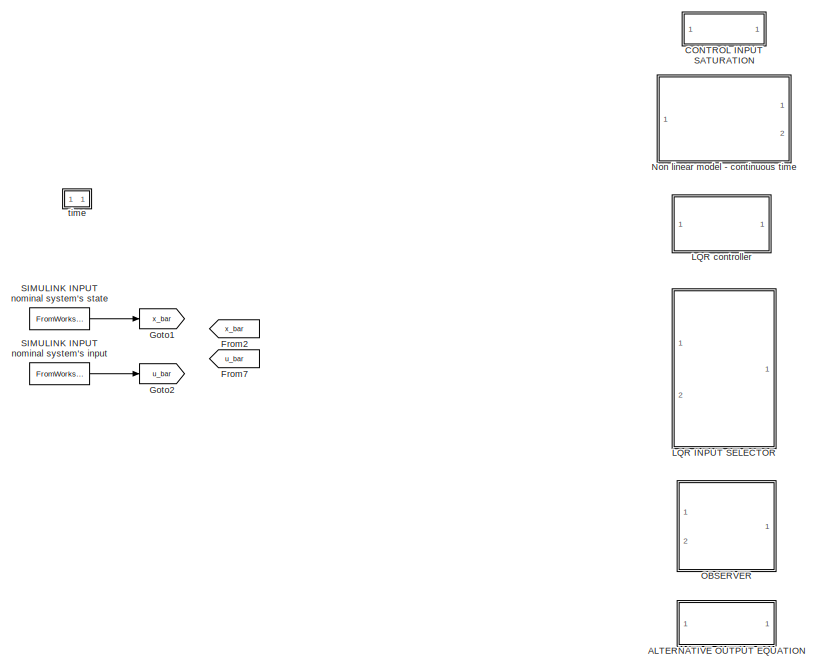
[diagram: root canvas - part 1/2, left side, full height]
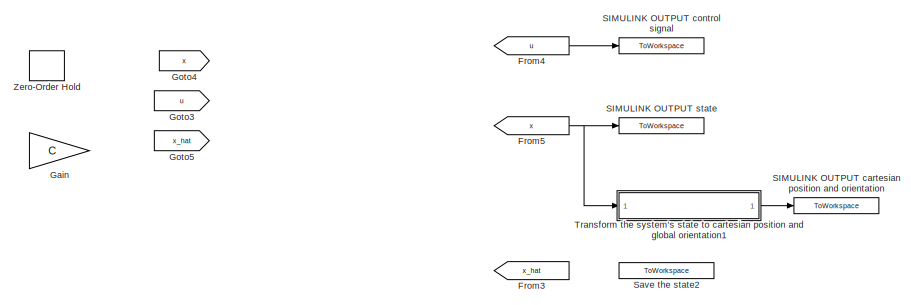
[diagram: root canvas - part 2/2, middle right region]
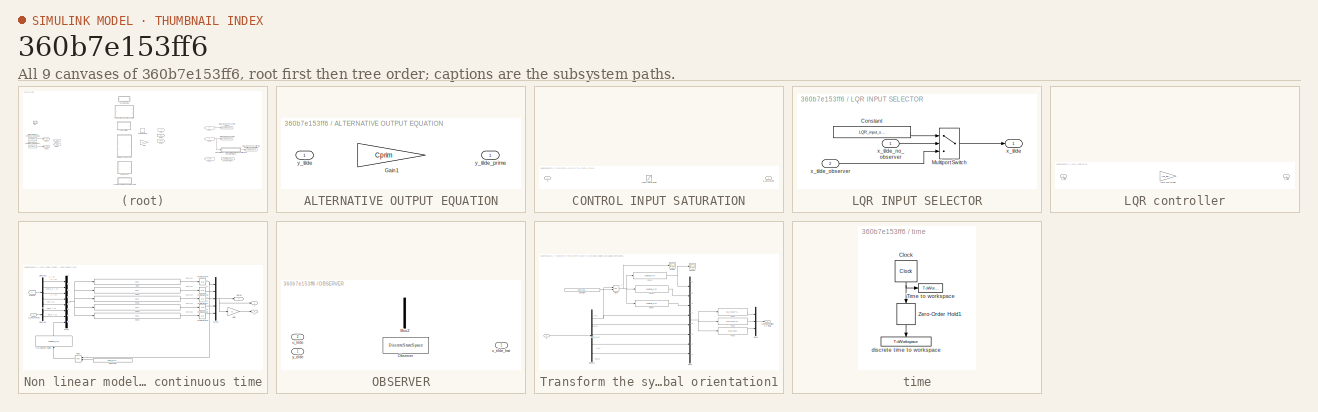
[diagram: thumbnail index - all 9 canvases of the model, root first then tree order]
MODEL slx_360b7e153ff6
KIND model
CONFIG AbsTol = auto
CONFIG EnableMultiTasking = on
CONFIG FixedStep = auto
CONFIG MaxStep = 0.01
CONFIG MinStep = auto
CONFIG RelTol = 1e-3
CONFIG SampleTimeConstraint = Unconstrained
CONFIG Solver = ode45
CONFIG SolverName = ode45
CONFIG StartTime = 0.0
CONFIG StopTime = simulation_time
BLOCK [SubSystem] ALTERNATIVE OUTPUT EQUATION
  Ports = [1, 1]
  RequestExecContextInheritance = off
BLOCK [Gain] ALTERNATIVE OUTPUT EQUATION/Gain1
  Gain = Cprim
  Multiplication = Matrix(K*u)
  OutDataTypeStr = Inherit: Inherit via internal rule
  ParamDataTypeStr = Inherit: Inherit via internal rule
  SaturateOnIntegerOverflow = off
BLOCK [Inport] ALTERNATIVE OUTPUT EQUATION/y_tilde
  IconDisplay = Port number
BLOCK [Outport] ALTERNATIVE OUTPUT EQUATION/y_tilde_prime
  IconDisplay = Port number
BLOCK [SubSystem] CONTROL INPUT SATURATION
  Ports = [1, 1]
  RequestExecContextInheritance = off
BLOCK [Saturate] CONTROL INPUT SATURATION/Input saturation
  InputPortMap = u0
  LowerLimit = [0;-4*pi]
  Ports = [1, 1]
  UpperLimit = [Inf;4*pi]
BLOCK [Inport] CONTROL INPUT SATURATION/u
  IconDisplay = Port number
BLOCK [Outport] CONTROL INPUT SATURATION/u_saturated
  IconDisplay = Port number
BLOCK [From] From2
  GotoTag = x_bar
BLOCK [From] From3
  GotoTag = x_hat
BLOCK [From] From4
  GotoTag = u
BLOCK [From] From5
  GotoTag = x
BLOCK [From] From7
  GotoTag = u_bar
BLOCK [Gain] Gain
  Gain = C
  Multiplication = Matrix(K*u)
  OutDataTypeStr = Inherit: Inherit via internal rule
  ParamDataTypeStr = Inherit: Inherit via internal rule
  SaturateOnIntegerOverflow = off
BLOCK [Goto] Goto1
  GotoTag = x_bar
BLOCK [Goto] Goto2
  GotoTag = u_bar
BLOCK [Goto] Goto3
  GotoTag = u
BLOCK [Goto] Goto4
  GotoTag = x
BLOCK [Goto] Goto5
  GotoTag = x_hat
BLOCK [SubSystem] LQR INPUT SELECTOR
  Ports = [2, 1]
  RequestExecContextInheritance = off
BLOCK [Constant] LQR INPUT SELECTOR/Constant
  Value = LQR_input_signal_ID
BLOCK [MultiPortSwitch] LQR INPUT SELECTOR/Multiport Switch
  InputSameDT = off
  Inputs = 2
  Ports = [3, 1]
  SaturateOnIntegerOverflow = off
BLOCK [Outport] LQR INPUT SELECTOR/x_tilde
  IconDisplay = Port number
BLOCK [Inport] LQR INPUT SELECTOR/x_tilde_no_observer 
  IconDisplay = Port number
  PortDimensions = 5
BLOCK [Inport] LQR INPUT SELECTOR/x_tilde_observer
  IconDisplay = Port number
  Port = 2
  PortDimensions = 5
BLOCK [SubSystem] LQR controller
  Ports = [1, 1]
  RequestExecContextInheritance = off
BLOCK [Gain] LQR controller/LQR control gain
  Gain = -lqr_gain
  Multiplication = Matrix(K*u)
  OutDataTypeStr = Inherit: Inherit via internal rule
  ParamDataTypeStr = Inherit: Inherit via internal rule
  SaturateOnIntegerOverflow = off
BLOCK [Outport] LQR controller/u_tilde
  IconDisplay = Port number
BLOCK [Inport] LQR controller/x_tilde
  IconDisplay = Port number
  PortDimensions = 5
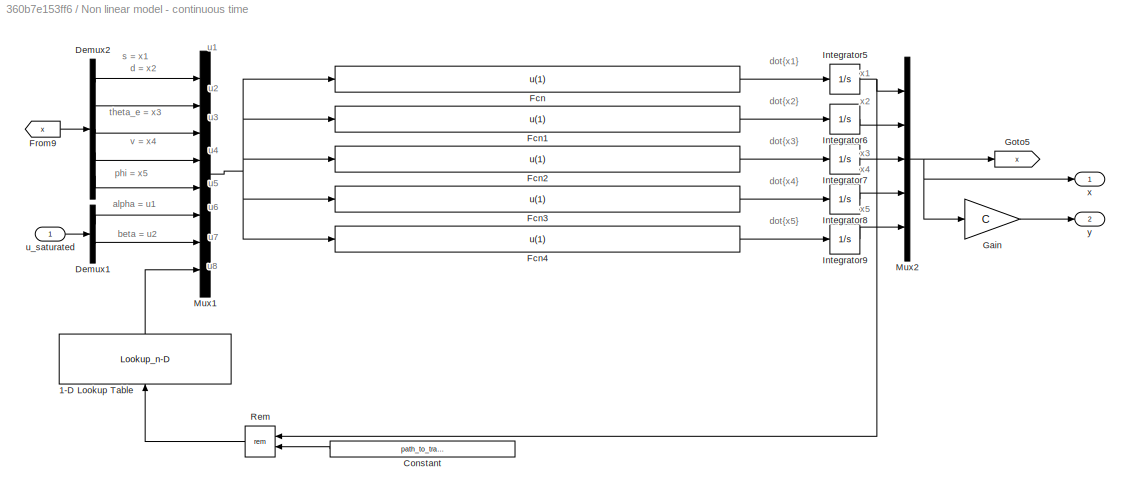
BLOCK [SubSystem] Non linear model - continuous time
  Ports = [1, 2]
  RequestExecContextInheritance = off
BLOCK [Lookup_n-D] Non linear model - continuous time/1-D Lookup Table
  BreakpointsForDimension1 = path_to_track.s_coordinate
  InternalRulePriority = Speed
  NumberOfTableDimensions = 1
  Ports = [1, 1]
  RndMeth = Simplest
  Table = path_to_track.curvature
BLOCK [Constant] Non linear model - continuous time/Constant
  Value = path_to_track.s_coordinate(end)
BLOCK [Demux] Non linear model - continuous time/Demux1
  DisplayOption = bar
  Outputs = 2
  Ports = [1, 2]
BLOCK [Demux] Non linear model - continuous time/Demux2
  DisplayOption = bar
  Outputs = 5
  Ports = [1, 5]
BLOCK [Fcn] Non linear model - continuous time/Fcn
  Expr = u(1)
BLOCK [Fcn] Non linear model - continuous time/Fcn1
  Expr = u(1)
BLOCK [Fcn] Non linear model - continuous time/Fcn2
  Expr = u(1)
BLOCK [Fcn] Non linear model - continuous time/Fcn3
  Expr = u(1)
BLOCK [Fcn] Non linear model - continuous time/Fcn4
  Expr = u(1)
BLOCK [From] Non linear model - continuous time/From9
  GotoTag = x
BLOCK [Gain] Non linear model - continuous time/Gain
  Gain = C
  Multiplication = Matrix(K*u)
  OutDataTypeStr = Inherit: Inherit via internal rule
  ParamDataTypeStr = Inherit: Inherit via internal rule
  SaturateOnIntegerOverflow = off
BLOCK [Goto] Non linear model - continuous time/Goto5
  GotoTag = x
BLOCK [Integrator] Non linear model - continuous time/Integrator5
  InitialCondition = x0(1)
  Ports = [1, 1]
BLOCK [Integrator] Non linear model - continuous time/Integrator6
  InitialCondition = x0(2)
  Ports = [1, 1]
BLOCK [Integrator] Non linear model - continuous time/Integrator7
  InitialCondition = x0(3)
  Ports = [1, 1]
BLOCK [Integrator] Non linear model - continuous time/Integrator8
  InitialCondition = x0(4)
  Ports = [1, 1]
BLOCK [Integrator] Non linear model - continuous time/Integrator9
  InitialCondition = x0(5)
  Ports = [1, 1]
BLOCK [Mux] Non linear model - continuous time/Mux1
  DisplayOption = bar
  Inputs = 8
  Ports = [8, 1]
BLOCK [Mux] Non linear model - continuous time/Mux2
  DisplayOption = bar
  Inputs = 5
  Ports = [5, 1]
BLOCK [Math] Non linear model - continuous time/Rem
  Operator = rem
  Ports = [2, 1]
BLOCK [Inport] Non linear model - continuous time/u_saturated
  IconDisplay = Port number
BLOCK [Outport] Non linear model - continuous time/x
  IconDisplay = Port number
BLOCK [Outport] Non linear model - continuous time/y
  IconDisplay = Port number
  Port = 2
BLOCK [SubSystem] OBSERVER
  Ports = [2, 1]
  RequestExecContextInheritance = off
BLOCK [Mux] OBSERVER/Mux2
  DisplayOption = bar
  Inputs = 2
  Ports = [2, 1]
BLOCK [DiscreteStateSpace] OBSERVER/Observer
  A = AObs
  B = BObs
  C = CObs
  D = DObs
  InitialCondition = x0Obs
  SampleTime = sampling_time
BLOCK [Inport] OBSERVER/u_tilde
  IconDisplay = Port number
  Port = 2
BLOCK [Outport] OBSERVER/x_tilde_hat
  IconDisplay = Port number
BLOCK [Inport] OBSERVER/y_tilde
  IconDisplay = Port number
BLOCK [FromWorkspace] SIMULINK INPUT nominal system's input
  OutputAfterFinalValue = Holding final value
  SampleTime = sampling_time
  VariableName = u_bar
  ZeroCross = on
BLOCK [FromWorkspace] SIMULINK INPUT nominal system's state
  OutputAfterFinalValue = Holding final value
  SampleTime = sampling_time
  VariableName = x_bar
  ZeroCross = on
BLOCK [ToWorkspace] SIMULINK OUTPUT cartesian position and orientation
  MaxDataPoints = inf
  Ports = [1]
  SampleTime = -1
  VariableName = x_y_theta
BLOCK [ToWorkspace] SIMULINK OUTPUT control signal
  MaxDataPoints = inf
  Ports = [1]
  SampleTime = -1
  VariableName = u
BLOCK [ToWorkspace] SIMULINK OUTPUT state
  MaxDataPoints = inf
  Ports = [1]
  SampleTime = -1
  VariableName = x
BLOCK [ToWorkspace] Save the state2
  MaxDataPoints = inf
  Ports = [1]
  SampleTime = -1
  VariableName = x_hat1
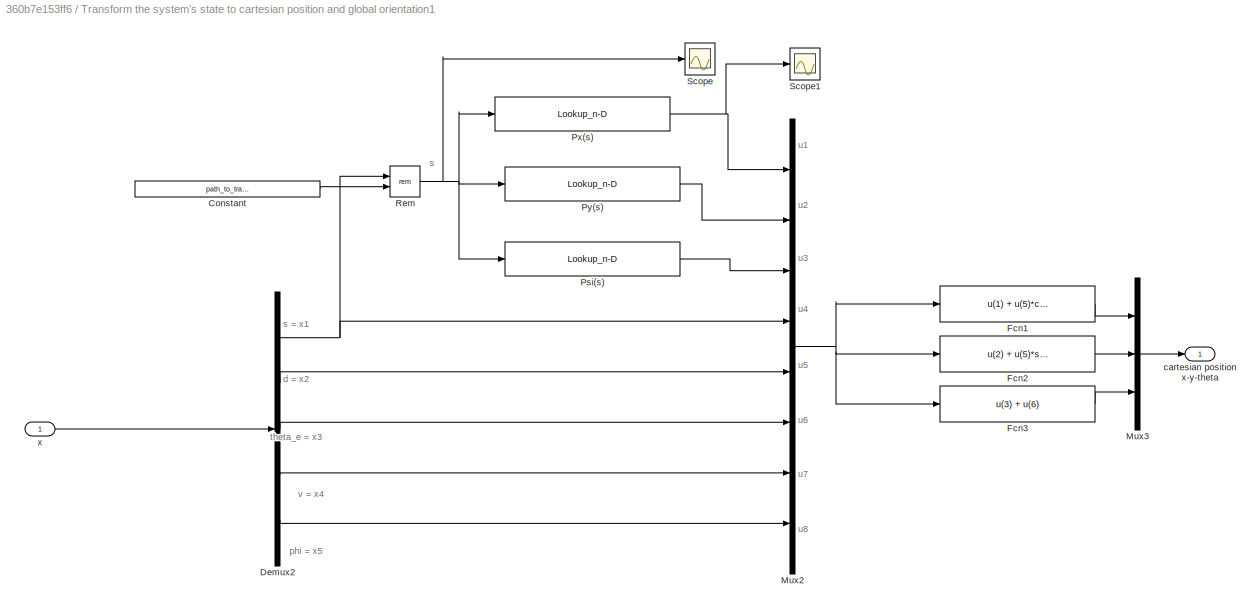
BLOCK [SubSystem] Transform the system's state to cartesian position and global orientation1
  Ports = [1, 1]
  RequestExecContextInheritance = off
BLOCK [Constant] Transform the system's state to cartesian position and global orientation1/Constant
  Value = path_to_track.s_coordinate(end)
BLOCK [Demux] Transform the system's state to cartesian position and global orientation1/Demux2
  DisplayOption = bar
  Outputs = 5
  Ports = [1, 5]
BLOCK [Fcn] Transform the system's state to cartesian position and global orientation1/Fcn1
  Expr = u(1) + u(5)*cos(u(3) + pi/2)
BLOCK [Fcn] Transform the system's state to cartesian position and global orientation1/Fcn2
  Expr = u(2) + u(5)*sin(u(3) + pi/2)
BLOCK [Fcn] Transform the system's state to cartesian position and global orientation1/Fcn3
  Expr = u(3) + u(6)
BLOCK [Mux] Transform the system's state to cartesian position and global orientation1/Mux2
  DisplayOption = bar
  Inputs = 8
  Ports = [8, 1]
BLOCK [Mux] Transform the system's state to cartesian position and global orientation1/Mux3
  DisplayOption = bar
  Inputs = 3
  Ports = [3, 1]
BLOCK [Lookup_n-D] Transform the system's state to cartesian position and global orientation1/Psi(s)
  BreakpointsForDimension1 = path_to_track.s_coordinate
  InternalRulePriority = Speed
  NumberOfTableDimensions = 1
  Ports = [1, 1]
  RndMeth = Simplest
  Table = path_to_track.orientation
BLOCK [Lookup_n-D] Transform the system's state to cartesian position and global orientation1/Px(s)
  BreakpointsForDimension1 = path_to_track.s_coordinate
  InternalRulePriority = Speed
  NumberOfTableDimensions = 1
  Ports = [1, 1]
  RndMeth = Simplest
  Table = path_to_track.coordinates(:,1)
BLOCK [Lookup_n-D] Transform the system's state to cartesian position and global orientation1/Py(s)
  BreakpointsForDimension1 = path_to_track.s_coordinate
  InternalRulePriority = Speed
  NumberOfTableDimensions = 1
  Ports = [1, 1]
  RndMeth = Simplest
  Table = path_to_track.coordinates(:,2)
BLOCK [Math] Transform the system's state to cartesian position and global orientation1/Rem
  Operator = rem
  Ports = [2, 1]
BLOCK [Scope] Transform the system's state to cartesian position and global orientation1/Scope
  Floating = off
  NumInputPorts = 1
  Ports = [1]
  ScopeSpecificationString = Simulink.scopes.TimeScopeBlockCfg('CurrentConfiguration', extmgr.ConfigurationSet(extmgr.Configuration('Core','General UI',true),extmgr.Configuration('Core','Source UI',true),extmgr.Configuration('Sources','WiredSimulink',true),extmgr.Configuration('Visuals','Time Domain',true,'SerializedDisplays',{struct('MinYLimReal','-23.93468','MaxYLimReal','214.65941','YLabelReal','','MinYLimMag','0.00000','M...<+1360ch>
BLOCK [Scope] Transform the system's state to cartesian position and global orientation1/Scope1
  Floating = off
  NumInputPorts = 1
  Ports = [1]
  ScopeSpecificationString = Simulink.scopes.TimeScopeBlockCfg('CurrentConfiguration', extmgr.ConfigurationSet(extmgr.Configuration('Core','General UI',true),extmgr.Configuration('Core','Source UI',true),extmgr.Configuration('Sources','WiredSimulink',true,'DataLoggingVariableName','ScopeData1'),extmgr.Configuration('Visuals','Time Domain',true,'SerializedDisplays',{struct('MinYLimReal','9999999998.22974','MaxYLimReal','999999...<+1459ch>
BLOCK [Outport] Transform the system's state to cartesian position and global orientation1/cartesian position x-y-theta
  IconDisplay = Port number
BLOCK [Inport] Transform the system's state to cartesian position and global orientation1/x
  IconDisplay = Port number
BLOCK [ZeroOrderHold] Zero-Order Hold
  SampleTime = sampling_time
BLOCK [SubSystem] time
  Ports = []
  RequestExecContextInheritance = off
BLOCK [Clock] time/Clock
  DisplayTime = on
BLOCK [ToWorkspace] time/Time to workspace
  MaxDataPoints = inf
  Ports = [1]
  SampleTime = -1
  VariableName = time
BLOCK [ZeroOrderHold] time/Zero-Order Hold1
  SampleTime = sampling_time
BLOCK [ToWorkspace] time/discrete time to workspace
  MaxDataPoints = inf
  Ports = [1]
  SampleTime = -1
  VariableName = discrete_time
ANNOTATION Non linear model - continuous time: alpha = u1
ANNOTATION Non linear model - continuous time: beta = u2
ANNOTATION Non linear model - continuous time: d = x2
ANNOTATION Non linear model - continuous time: dot{x1}
ANNOTATION Non linear model - continuous time: dot{x2}
ANNOTATION Non linear model - continuous time: dot{x3}
ANNOTATION Non linear model - continuous time: dot{x4}
ANNOTATION Non linear model - continuous time: dot{x5}
ANNOTATION Non linear model - continuous time: phi = x5
ANNOTATION Non linear model - continuous time: s = x1
ANNOTATION Non linear model - continuous time: theta_e = x3
ANNOTATION Non linear model - continuous time: u1
ANNOTATION Non linear model - continuous time: u2
ANNOTATION Non linear model - continuous time: u3
ANNOTATION Non linear model - continuous time: u4
ANNOTATION Non linear model - continuous time: u5
ANNOTATION Non linear model - continuous time: u6
ANNOTATION Non linear model - continuous time: u7
ANNOTATION Non linear model - continuous time: u8
ANNOTATION Non linear model - continuous time: v = x4
ANNOTATION Non linear model - continuous time: x1
ANNOTATION Non linear model - continuous time: x2
ANNOTATION Non linear model - continuous time: x3
ANNOTATION Non linear model - continuous time: x4
ANNOTATION Non linear model - continuous time: x5
ANNOTATION Transform the system's state to cartesian position and global orientation1: d = x2
ANNOTATION Transform the system's state to cartesian position and global orientation1: phi = x5
ANNOTATION Transform the system's state to cartesian position and global orientation1: s
ANNOTATION Transform the system's state to cartesian position and global orientation1: s = x1
ANNOTATION Transform the system's state to cartesian position and global orientation1: theta_e = x3
ANNOTATION Transform the system's state to cartesian position and global orientation1: u1
ANNOTATION Transform the system's state to cartesian position and global orientation1: u2
ANNOTATION Transform the system's state to cartesian position and global orientation1: u3
ANNOTATION Transform the system's state to cartesian position and global orientation1: u4
ANNOTATION Transform the system's state to cartesian position and global orientation1: u5
ANNOTATION Transform the system's state to cartesian position and global orientation1: u6
ANNOTATION Transform the system's state to cartesian position and global orientation1: u7
ANNOTATION Transform the system's state to cartesian position and global orientation1: u8
ANNOTATION Transform the system's state to cartesian position and global orientation1: v = x4
LINE From4:1 -> SIMULINK OUTPUT control signal:1
NET From5:1 -> SIMULINK OUTPUT state:1, Transform the system's state to cartesian position and global orientation1:1
LINE LQR INPUT SELECTOR/Constant:1 -> LQR INPUT SELECTOR/Multiport Switch:1
LINE LQR INPUT SELECTOR/Multiport Switch:1 -> LQR INPUT SELECTOR/x_tilde:1
LINE LQR INPUT SELECTOR/x_tilde_no_observer :1 -> LQR INPUT SELECTOR/Multiport Switch:2
LINE LQR INPUT SELECTOR/x_tilde_observer:1 -> LQR INPUT SELECTOR/Multiport Switch:3
LINE Non linear model - continuous time/1-D Lookup Table:1 -> Non linear model - continuous time/Mux1:8
LINE Non linear model - continuous time/Constant:1 -> Non linear model - continuous time/Rem:2
LINE Non linear model - continuous time/Demux1:1 -> Non linear model - continuous time/Mux1:6
LINE Non linear model - continuous time/Demux1:2 -> Non linear model - continuous time/Mux1:7
LINE Non linear model - continuous time/Demux2:1 -> Non linear model - continuous time/Mux1:1
LINE Non linear model - continuous time/Demux2:2 -> Non linear model - continuous time/Mux1:2
LINE Non linear model - continuous time/Demux2:3 -> Non linear model - continuous time/Mux1:3
LINE Non linear model - continuous time/Demux2:4 -> Non linear model - continuous time/Mux1:4
LINE Non linear model - continuous time/Demux2:5 -> Non linear model - continuous time/Mux1:5
LINE Non linear model - continuous time/Fcn1:1 -> Non linear model - continuous time/Integrator6:1
LINE Non linear model - continuous time/Fcn2:1 -> Non linear model - continuous time/Integrator7:1
LINE Non linear model - continuous time/Fcn3:1 -> Non linear model - continuous time/Integrator8:1
LINE Non linear model - continuous time/Fcn4:1 -> Non linear model - continuous time/Integrator9:1
LINE Non linear model - continuous time/Fcn:1 -> Non linear model - continuous time/Integrator5:1
LINE Non linear model - continuous time/From9:1 -> Non linear model - continuous time/Demux2:1
LINE Non linear model - continuous time/Gain:1 -> Non linear model - continuous time/y:1
NET Non linear model - continuous time/Integrator5:1 -> Non linear model - continuous time/Mux2:1, Non linear model - continuous time/Rem:1
LINE Non linear model - continuous time/Integrator6:1 -> Non linear model - continuous time/Mux2:2
LINE Non linear model - continuous time/Integrator7:1 -> Non linear model - continuous time/Mux2:3
LINE Non linear model - continuous time/Integrator8:1 -> Non linear model - continuous time/Mux2:4
LINE Non linear model - continuous time/Integrator9:1 -> Non linear model - continuous time/Mux2:5
NET Non linear model - continuous time/Mux1:1 -> Non linear model - continuous time/Fcn1:1, Non linear model - continuous time/Fcn2:1, Non linear model - continuous time/Fcn3:1, Non linear model - continuous time/Fcn4:1, Non linear model - continuous time/Fcn:1
NET Non linear model - continuous time/Mux2:1 -> Non linear model - continuous time/Gain:1, Non linear model - continuous time/Goto5:1, Non linear model - continuous time/x:1
LINE Non linear model - continuous time/Rem:1 -> Non linear model - continuous time/1-D Lookup Table:1
LINE Non linear model - continuous time/u_saturated:1 -> Non linear model - continuous time/Demux1:1
LINE SIMULINK INPUT nominal system's input:1 -> Goto2:1
LINE SIMULINK INPUT nominal system's state:1 -> Goto1:1
LINE Transform the system's state to cartesian position and global orientation1/Constant:1 -> Transform the system's state to cartesian position and global orientation1/Rem:2
NET Transform the system's state to cartesian position and global orientation1/Demux2:1 -> Transform the system's state to cartesian position and global orientation1/Mux2:4, Transform the system's state to cartesian position and global orientation1/Rem:1
LINE Transform the system's state to cartesian position and global orientation1/Demux2:2 -> Transform the system's state to cartesian position and global orientation1/Mux2:5
LINE Transform the system's state to cartesian position and global orientation1/Demux2:3 -> Transform the system's state to cartesian position and global orientation1/Mux2:6
LINE Transform the system's state to cartesian position and global orientation1/Demux2:4 -> Transform the system's state to cartesian position and global orientation1/Mux2:7
LINE Transform the system's state to cartesian position and global orientation1/Demux2:5 -> Transform the system's state to cartesian position and global orientation1/Mux2:8
LINE Transform the system's state to cartesian position and global orientation1/Fcn1:1 -> Transform the system's state to cartesian position and global orientation1/Mux3:1
LINE Transform the system's state to cartesian position and global orientation1/Fcn2:1 -> Transform the system's state to cartesian position and global orientation1/Mux3:2
LINE Transform the system's state to cartesian position and global orientation1/Fcn3:1 -> Transform the system's state to cartesian position and global orientation1/Mux3:3
NET Transform the system's state to cartesian position and global orientation1/Mux2:1 -> Transform the system's state to cartesian position and global orientation1/Fcn1:1, Transform the system's state to cartesian position and global orientation1/Fcn2:1, Transform the system's state to cartesian position and global orientation1/Fcn3:1
LINE Transform the system's state to cartesian position and global orientation1/Mux3:1 -> Transform the system's state to cartesian position and global orientation1/cartesian position x-y-theta:1
LINE Transform the system's state to cartesian position and global orientation1/Psi(s):1 -> Transform the system's state to cartesian position and global orientation1/Mux2:3
NET Transform the system's state to cartesian position and global orientation1/Px(s):1 -> Transform the system's state to cartesian position and global orientation1/Mux2:1, Transform the system's state to cartesian position and global orientation1/Scope1:1
LINE Transform the system's state to cartesian position and global orientation1/Py(s):1 -> Transform the system's state to cartesian position and global orientation1/Mux2:2
NET Transform the system's state to cartesian position and global orientation1/Rem:1 -> Transform the system's state to cartesian position and global orientation1/Psi(s):1, Transform the system's state to cartesian position and global orientation1/Px(s):1, Transform the system's state to cartesian position and global orientation1/Py(s):1, Transform the system's state to cartesian position and global orientation1/Scope:1
LINE Transform the system's state to cartesian position and global orientation1/x:1 -> Transform the system's state to cartesian position and global orientation1/Demux2:1
LINE Transform the system's state to cartesian position and global orientation1:1 -> SIMULINK OUTPUT cartesian position and orientation:1
NET time/Clock:1 -> time/Time to workspace:1, time/Zero-Order Hold1:1
LINE time/Zero-Order Hold1:1 -> time/discrete time to workspace:1
note: NET lines group one-source signal fan-out (src -> all destinations, sorted); 1:1 wires keep LINE
